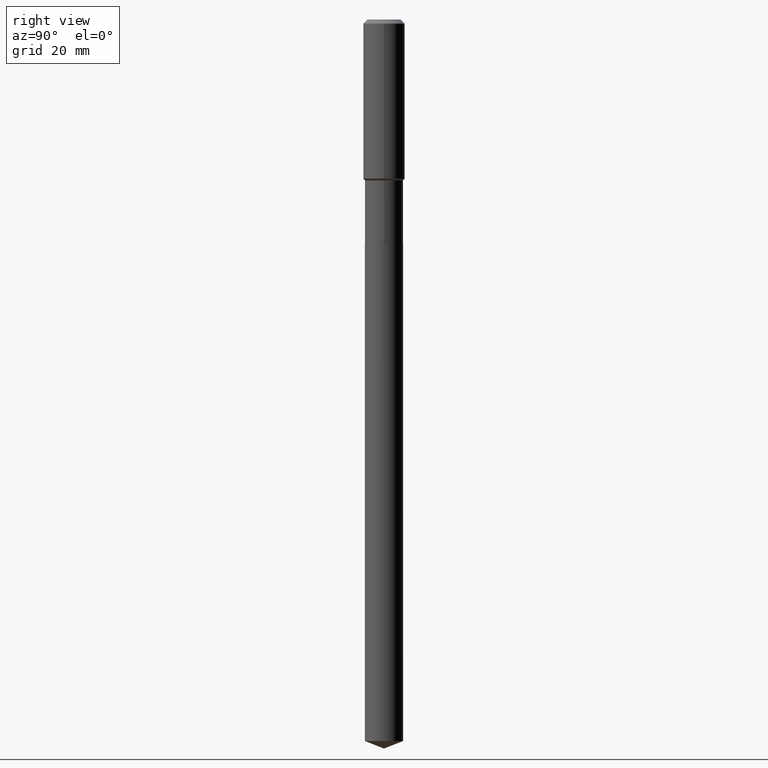
[diagram: clean part render]
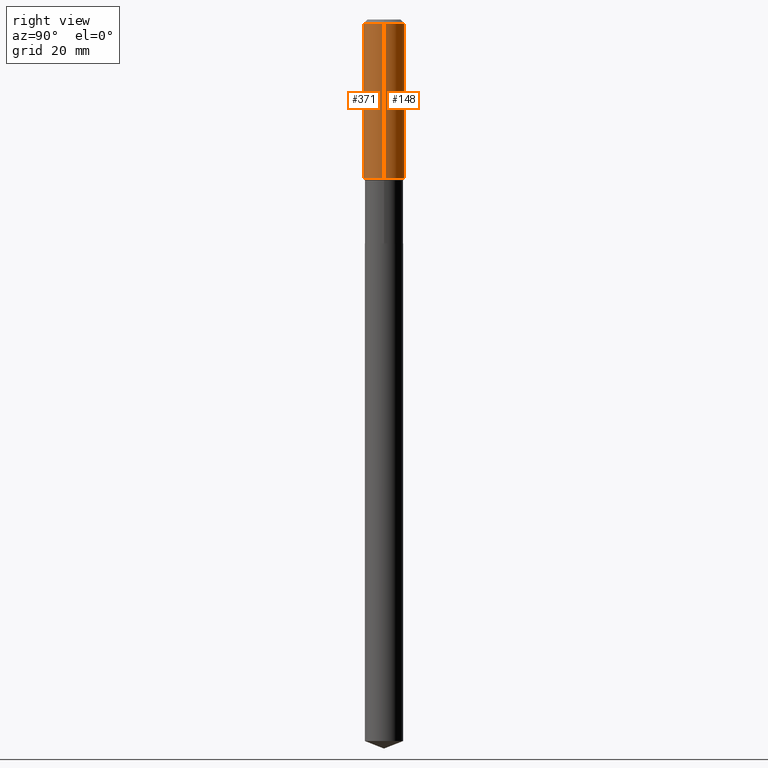
[diagram: same view with one multi-face feature highlighted, each face labeled with its STEP entity id]
A machine part, right view. The highlighted faces form ONE feature: a constant-radius fillet chain: 2 tangent blend faces with common blend radius 5.9995 mm. The faces share edges in the B-rep.
Their STEP definitions:
[1] entity #148 (Cylinder):
#27 = DIRECTION ( 'NONE',  ( 1.000000000000000000, -6.982962677686266711E-15, 4.876176775795935793E-29 ) ) ;
#46 = VERTEX_POINT ( 'NONE', #337 ) ;
#68 = AXIS2_PLACEMENT_3D ( 'NONE', #360, #481, #27 ) ;
#72 = EDGE_CURVE ( 'NONE', #139, #467, #174, .T. ) ;
#89 = VECTOR ( 'NONE', #230, 39.37007874015748143 ) ;
#139 = VERTEX_POINT ( 'NONE', #216 ) ;
#142 = CARTESIAN_POINT ( 'NONE',  ( 0.2361999999999999933, -1.814313362916447440E-15, -0.04724000000000027483 ) ) ;
#148 = ADVANCED_FACE ( 'NONE', ( #222 ), #366, .T. ) ;
#151 = EDGE_CURVE ( 'NONE', #153, #467, #449, .T. ) ;
#153 = VERTEX_POINT ( 'NONE', #142 ) ;
#163 = ORIENTED_EDGE ( 'NONE', *, *, #234, .F. ) ;
#164 = AXIS2_PLACEMENT_3D ( 'NONE', #248, #167, #438 ) ;
#167 = DIRECTION ( 'NONE',  ( -2.445468806185136597E-29, 3.491481338843145583E-15, 1.000000000000000000 ) ) ;
#174 = LINE ( 'NONE', #443, #340 ) ;
#176 = CARTESIAN_POINT ( 'NONE',  ( 1.155239464041865331E-30, -1.649375784469511612E-16, -0.04724000000000027483 ) ) ;
#204 = EDGE_LOOP ( 'NONE', ( #479, #341, #269, #163 ) ) ;
#216 = CARTESIAN_POINT ( 'NONE',  ( -0.2362000000000002153, -4.625043893215115427E-15, -1.805350000000000232 ) ) ;
#222 = FACE_OUTER_BOUND ( 'NONE', #204, .T. ) ;
#230 = DIRECTION ( 'NONE',  ( -2.445468806185136877E-29, 3.491481338843145188E-15, 1.000000000000000000 ) ) ;
#234 = EDGE_CURVE ( 'NONE', #46, #153, #339, .T. ) ;
#248 = CARTESIAN_POINT ( 'NONE',  ( 4.414927109246337168E-29, -6.303345835080474188E-15, -1.805350000000000232 ) ) ;
#269 = ORIENTED_EDGE ( 'NONE', *, *, #151, .F. ) ;
#304 = CARTESIAN_POINT ( 'NONE',  ( 0.2362000000000001043, -1.649375784469496920E-15, 1.151752954443000508E-29 ) ) ;
#330 = DIRECTION ( 'NONE',  ( -2.445468806185136597E-29, 3.491481338843145583E-15, 1.000000000000000000 ) ) ;
#337 = CARTESIAN_POINT ( 'NONE',  ( 0.2362000000000002153, -7.952721619549971502E-15, -1.805350000000000232 ) ) ;
#339 = LINE ( 'NONE', #304, #89 ) ;
#340 = VECTOR ( 'NONE', #446, 39.37007874015748143 ) ;
#341 = ORIENTED_EDGE ( 'NONE', *, *, #72, .T. ) ;
#360 = CARTESIAN_POINT ( 'NONE',  ( 0.000000000000000000, 0.000000000000000000, 0.000000000000000000 ) ) ;
#366 = CYLINDRICAL_SURFACE ( 'NONE', #68, 0.2362000000000001043 ) ;
#378 = CIRCLE ( 'NONE', #164, 0.2362000000000002153 ) ;
#387 = CARTESIAN_POINT ( 'NONE',  ( -0.2361999999999999933, -1.555839764898354974E-15, -0.04724000000000027483 ) ) ;
#408 = DIRECTION ( 'NONE',  ( 1.000000000000000000, -6.982962677686266711E-15, 0.000000000000000000 ) ) ;
#438 = DIRECTION ( 'NONE',  ( 1.000000000000000000, -6.982962677686266711E-15, 0.000000000000000000 ) ) ;
#443 = CARTESIAN_POINT ( 'NONE',  ( -0.2362000000000001043, 1.678301941865357380E-15, -1.161852468318209317E-29 ) ) ;
#446 = DIRECTION ( 'NONE',  ( -2.445468806185136877E-29, 3.491481338843145188E-15, 1.000000000000000000 ) ) ;
#449 = CIRCLE ( 'NONE', #465, 0.2361999999999999933 ) ;
#459 = EDGE_CURVE ( 'NONE', #46, #139, #378, .T. ) ;
#465 = AXIS2_PLACEMENT_3D ( 'NONE', #176, #330, #408 ) ;
#467 = VERTEX_POINT ( 'NONE', #387 ) ;
#479 = ORIENTED_EDGE ( 'NONE', *, *, #459, .T. ) ;
#481 = DIRECTION ( 'NONE',  ( -2.445468806185136597E-29, 3.491481338843145583E-15, 1.000000000000000000 ) ) ;
[2] entity #371 (Cylinder):
#13 = CARTESIAN_POINT ( 'NONE',  ( 1.155239464041865331E-30, -1.649375784469511612E-16, -0.04724000000000027483 ) ) ;
#41 = FACE_OUTER_BOUND ( 'NONE', #464, .T. ) ;
#43 = CIRCLE ( 'NONE', #318, 0.2361999999999999933 ) ;
#46 = VERTEX_POINT ( 'NONE', #337 ) ;
#72 = EDGE_CURVE ( 'NONE', #139, #467, #174, .T. ) ;
#77 = AXIS2_PLACEMENT_3D ( 'NONE', #451, #92, #112 ) ;
#89 = VECTOR ( 'NONE', #230, 39.37007874015748143 ) ;
#91 = ORIENTED_EDGE ( 'NONE', *, *, #234, .T. ) ;
#92 = DIRECTION ( 'NONE',  ( -2.445468806185136597E-29, 3.491481338843145583E-15, 1.000000000000000000 ) ) ;
#104 = EDGE_CURVE ( 'NONE', #139, #46, #296, .T. ) ;
#112 = DIRECTION ( 'NONE',  ( 1.000000000000000000, -6.982962677686266711E-15, 4.876176775795935793E-29 ) ) ;
#116 = ORIENTED_EDGE ( 'NONE', *, *, #72, .F. ) ;
#139 = VERTEX_POINT ( 'NONE', #216 ) ;
#142 = CARTESIAN_POINT ( 'NONE',  ( 0.2361999999999999933, -1.814313362916447440E-15, -0.04724000000000027483 ) ) ;
#153 = VERTEX_POINT ( 'NONE', #142 ) ;
#161 = ORIENTED_EDGE ( 'NONE', *, *, #445, .F. ) ;
#174 = LINE ( 'NONE', #443, #340 ) ;
#208 = DIRECTION ( 'NONE',  ( 1.000000000000000000, -6.982962677686266711E-15, 0.000000000000000000 ) ) ;
#216 = CARTESIAN_POINT ( 'NONE',  ( -0.2362000000000002153, -4.625043893215115427E-15, -1.805350000000000232 ) ) ;
#230 = DIRECTION ( 'NONE',  ( -2.445468806185136877E-29, 3.491481338843145188E-15, 1.000000000000000000 ) ) ;
#234 = EDGE_CURVE ( 'NONE', #46, #153, #339, .T. ) ;
#257 = DIRECTION ( 'NONE',  ( -2.445468806185136597E-29, 3.491481338843145583E-15, 1.000000000000000000 ) ) ;
#288 = DIRECTION ( 'NONE',  ( -2.445468806185136597E-29, 3.491481338843145583E-15, 1.000000000000000000 ) ) ;
#296 = CIRCLE ( 'NONE', #473, 0.2362000000000002153 ) ;
#304 = CARTESIAN_POINT ( 'NONE',  ( 0.2362000000000001043, -1.649375784469496920E-15, 1.151752954443000508E-29 ) ) ;
#318 = AXIS2_PLACEMENT_3D ( 'NONE', #13, #288, #208 ) ;
#337 = CARTESIAN_POINT ( 'NONE',  ( 0.2362000000000002153, -7.952721619549971502E-15, -1.805350000000000232 ) ) ;
#338 = DIRECTION ( 'NONE',  ( 1.000000000000000000, -6.982962677686266711E-15, 0.000000000000000000 ) ) ;
#339 = LINE ( 'NONE', #304, #89 ) ;
#340 = VECTOR ( 'NONE', #446, 39.37007874015748143 ) ;
#371 = ADVANCED_FACE ( 'NONE', ( #41 ), #458, .T. ) ;
#387 = CARTESIAN_POINT ( 'NONE',  ( -0.2361999999999999933, -1.555839764898354974E-15, -0.04724000000000027483 ) ) ;
#432 = ORIENTED_EDGE ( 'NONE', *, *, #104, .T. ) ;
#436 = CARTESIAN_POINT ( 'NONE',  ( 4.414927109246337168E-29, -6.303345835080474188E-15, -1.805350000000000232 ) ) ;
#443 = CARTESIAN_POINT ( 'NONE',  ( -0.2362000000000001043, 1.678301941865357380E-15, -1.161852468318209317E-29 ) ) ;
#445 = EDGE_CURVE ( 'NONE', #467, #153, #43, .T. ) ;
#446 = DIRECTION ( 'NONE',  ( -2.445468806185136877E-29, 3.491481338843145188E-15, 1.000000000000000000 ) ) ;
#451 = CARTESIAN_POINT ( 'NONE',  ( 0.000000000000000000, 0.000000000000000000, 0.000000000000000000 ) ) ;
#458 = CYLINDRICAL_SURFACE ( 'NONE', #77, 0.2362000000000001043 ) ;
#464 = EDGE_LOOP ( 'NONE', ( #116, #432, #91, #161 ) ) ;
#467 = VERTEX_POINT ( 'NONE', #387 ) ;
#473 = AXIS2_PLACEMENT_3D ( 'NONE', #436, #257, #338 ) ;